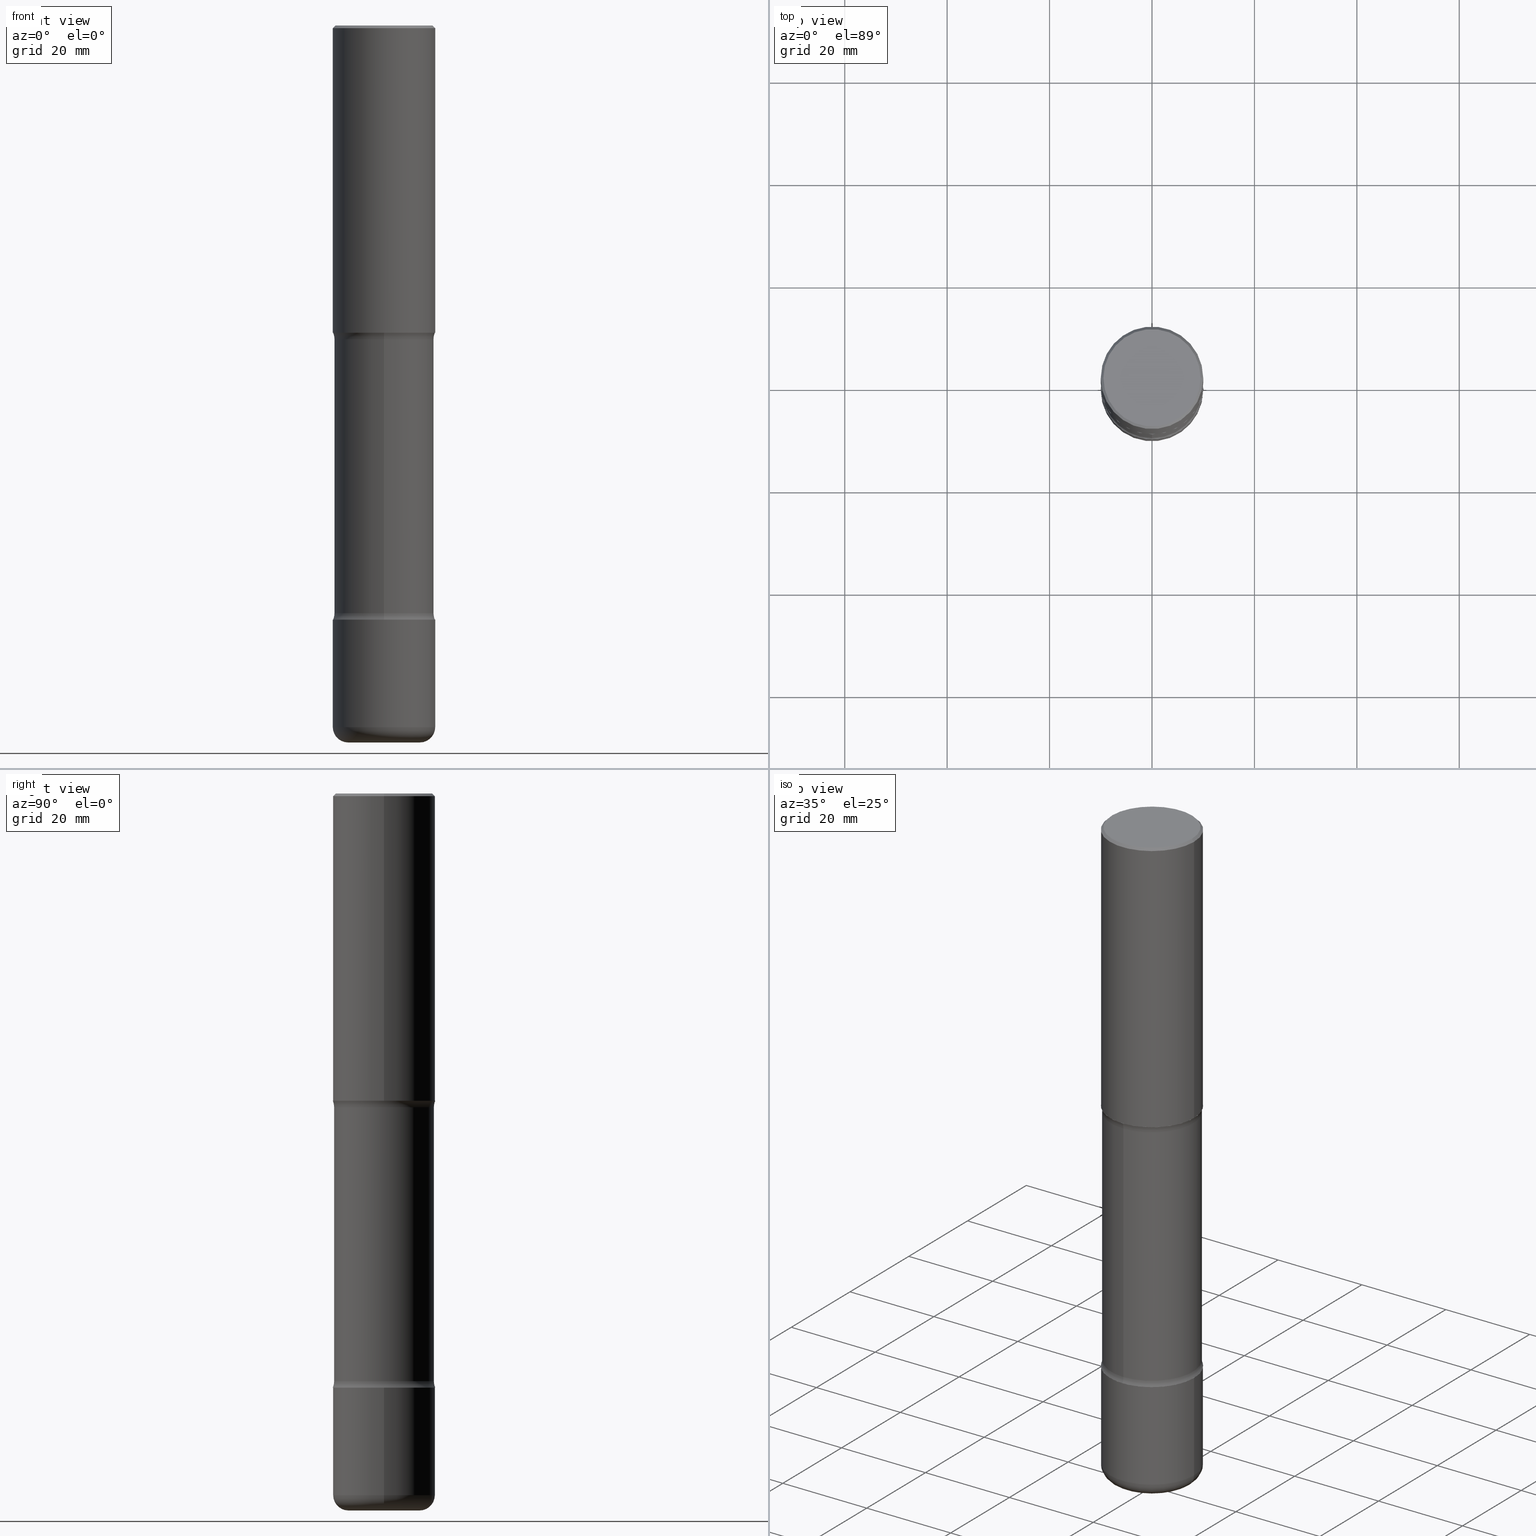
[diagram: canonical four-view strip — front | top / right | iso, engineering-drawing reading convention]
A machine part, canonical four-view strip (front | top / right | iso — engineering-drawing reading convention). The complete STEP part file that produces these views, byte-faithful:
ISO-10303-21;
HEADER;
FILE_DESCRIPTION (( 'STEP AP203' ),
    '1' );
FILE_NAME ('46839.STEP',
    '2024-03-02T05:49:47',
    ( '' ),
    ( '' ),
    'SwSTEP 2.0',
    'SolidWorks 2023',
    '' );
FILE_SCHEMA (( 'CONFIG_CONTROL_DESIGN' ));
ENDSEC;

DATA;
#1 = AXIS2_PLACEMENT_3D ( 'NONE', #375, #271, #474 ) ;
#2 = DIRECTION ( 'NONE',  ( -2.445468806185136597E-29, 3.491481338843145583E-15, 1.000000000000000000 ) ) ;
#3 = AXIS2_PLACEMENT_3D ( 'NONE', #250, #351, #558 ) ;
#4 = AXIS2_PLACEMENT_3D ( 'NONE', #115, #507, #152 ) ;
#5 = ORIENTED_EDGE ( 'NONE', *, *, #280, .F. ) ;
#6 = CYLINDRICAL_SURFACE ( 'NONE', #284, 0.3937000000000004940 ) ;
#7 = DIRECTION ( 'NONE',  ( 6.982962677686265133E-15, 1.000000000000000000, -2.849385130288669478E-15 ) ) ;
#8 = CARTESIAN_POINT ( 'NONE',  ( 0.000000000000000000, 0.000000000000000000, 0.000000000000000000 ) ) ;
#9 = DIRECTION ( 'NONE',  ( -2.445468806185136597E-29, 3.491481338843145583E-15, 1.000000000000000000 ) ) ;
#10 = VECTOR ( 'NONE', #499, 39.37007874015748143 ) ;
#11 = ADVANCED_FACE ( 'NONE', ( #300 ), #355, .F. ) ;
#12 = FACE_OUTER_BOUND ( 'NONE', #429, .T. ) ;
#13 = CARTESIAN_POINT ( 'NONE',  ( -2.700978061722601160E-15, -0.3937000000000093203, -2.362199999999998745 ) ) ;
#14 = VECTOR ( 'NONE', #131, 39.37007874015748143 ) ;
#15 = ADVANCED_FACE ( 'NONE', ( #84 ), #87, .T. ) ;
#16 = PERSON_AND_ORGANIZATION ( #181, #86 ) ;
#17 = CARTESIAN_POINT ( 'NONE',  ( -0.2756000000000005112, -1.666034360515578642E-14, -5.511800000000000033 ) ) ;
#18 = CARTESIAN_POINT ( 'NONE',  ( -2.087702828670439639E-46, 2.980686340760894400E-32, 8.537024980200822558E-18 ) ) ;
#19 = ADVANCED_FACE ( 'NONE', ( #399 ), #501, .F. ) ;
#20 = DIRECTION ( 'NONE',  ( 6.982962677686265133E-15, 1.000000000000000000, -3.339103073195795043E-15 ) ) ;
#21 = APPROVAL_DATE_TIME ( #151, #330 ) ;
#22 = VECTOR ( 'NONE', #398, 39.37007874015748143 ) ;
#23 = AXIS2_PLACEMENT_3D ( 'NONE', #50, #111, #513 ) ;
#24 = EDGE_CURVE ( 'NONE', #26, #469, #70, .T. ) ;
#25 = EDGE_LOOP ( 'NONE', ( #124, #123 ) ) ;
#26 = VERTEX_POINT ( 'NONE', #142 ) ;
#27 = ADVANCED_FACE ( 'NONE', ( #90 ), #313, .F. ) ;
#28 = ORIENTED_EDGE ( 'NONE', *, *, #502, .F. ) ;
#29 = ORIENTED_EDGE ( 'NONE', *, *, #239, .T. ) ;
#30 = DATE_AND_TIME ( #286, #102 ) ;
#31 = ADVANCED_FACE ( 'NONE', ( #369 ), #41, .T. ) ;
#32 = TOROIDAL_SURFACE ( 'NONE', #356, 0.2756000000000005112, 0.1180999999999995248 ) ;
#33 = AXIS2_PLACEMENT_3D ( 'NONE', #516, #519, #381 ) ;
#34 = CARTESIAN_POINT ( 'NONE',  ( 5.776686413970530874E-29, -8.247577218615279626E-15, -2.362200000000000077 ) ) ;
#35 = CARTESIAN_POINT ( 'NONE',  ( 1.116821149096690103E-28, -1.594524612636276117E-14, -4.566900000000000404 ) ) ;
#36 = DIRECTION ( 'NONE',  ( 1.000000000000000000, -6.860497997771530774E-15, 4.842664975176989819E-29 ) ) ;
#37 = ORIENTED_EDGE ( 'NONE', *, *, #61, .T. ) ;
#38 = PERSON_AND_ORGANIZATION ( #181, #86 ) ;
#39 = DIRECTION ( 'NONE',  ( -2.445468806185136597E-29, 3.491481338843145583E-15, 1.000000000000000000 ) ) ;
#40 = ORIENTED_EDGE ( 'NONE', *, *, #527, .T. ) ;
#41 = CONICAL_SURFACE ( 'NONE', #364, 0.3937000000000000499, 0.7853981633974473908 ) ;
#42 = CARTESIAN_POINT ( 'NONE',  ( 0.3937000000000000499, -2.770807688499515734E-15, -0.02000000000000008715 ) ) ;
#43 = VECTOR ( 'NONE', #535, 39.37007874015748143 ) ;
#44 = LOCAL_TIME ( 0, 49, 47.00000000000000000, #336 ) ;
#45 = CARTESIAN_POINT ( 'NONE',  ( 1.319012509992077371E-28, -1.883200289731827938E-14, -5.393700000000000827 ) ) ;
#46 = CC_DESIGN_DATE_AND_TIME_ASSIGNMENT ( #195, #539, ( #112 ) ) ;
#47 = EDGE_CURVE ( 'NONE', #338, #162, #282, .T. ) ;
#48 = ORIENTED_EDGE ( 'NONE', *, *, #298, .T. ) ;
#49 = DIRECTION ( 'NONE',  ( 2.551873980375737716E-29, -3.339103073195795043E-15, -1.000000000000000000 ) ) ;
#50 = CARTESIAN_POINT ( 'NONE',  ( 4.890937612370294178E-31, -6.982962677686321191E-17, -0.02000000000000008715 ) ) ;
#51 = EDGE_CURVE ( 'NONE', #551, #335, #510, .T. ) ;
#52 = VERTEX_POINT ( 'NONE', #403 ) ;
#53 = DIRECTION ( 'NONE',  ( 2.551873980375737716E-29, -3.339103073195795043E-15, -1.000000000000000000 ) ) ;
#54 = CC_DESIGN_PERSON_AND_ORGANIZATION_ASSIGNMENT ( #188, #504, ( #139 ) ) ;
#55 = FACE_OUTER_BOUND ( 'NONE', #434, .T. ) ;
#56 = CIRCLE ( 'NONE', #172, 0.1250000000000001110 ) ;
#57 = ORIENTED_EDGE ( 'NONE', *, *, #168, .F. ) ;
#58 = CARTESIAN_POINT ( 'NONE',  ( 1.319012509992077371E-28, -1.883200289731827938E-14, -5.393700000000000827 ) ) ;
#59 = EDGE_CURVE ( 'NONE', #517, #549, #120, .T. ) ;
#60 = DIRECTION ( 'NONE',  ( 1.000000000000000000, -6.982962677686265922E-15, 0.000000000000000000 ) ) ;
#61 = EDGE_CURVE ( 'NONE', #291, #169, #228, .T. ) ;
#62 = DATE_AND_TIME ( #113, #368 ) ;
#63 = CIRCLE ( 'NONE', #252, 0.3937000000000007160 ) ;
#64 = AXIS2_PLACEMENT_3D ( 'NONE', #503, #461, #20 ) ;
#65 = AXIS2_PLACEMENT_3D ( 'NONE', #45, #217, #167 ) ;
#66 = CARTESIAN_POINT ( 'NONE',  ( 0.3937000000000002164, -1.099676962482036442E-14, -2.362200000000000077 ) ) ;
#67 = PERSON_AND_ORGANIZATION ( #181, #86 ) ;
#68 = PLANE ( 'NONE',  #295 ) ;
#69 = ORIENTED_EDGE ( 'NONE', *, *, #327, .F. ) ;
#70 = CIRCLE ( 'NONE', #466, 0.3736999999999999766 ) ;
#71 = CIRCLE ( 'NONE', #214, 0.3937000000000004385 ) ;
#72 =( NAMED_UNIT ( * ) PLANE_ANGLE_UNIT ( ) SI_UNIT ( $, .RADIAN. ) );
#73 = VERTEX_POINT ( 'NONE', #263 ) ;
#74 = ORIENTED_EDGE ( 'NONE', *, *, #24, .T. ) ;
#75 = ORIENTED_EDGE ( 'NONE', *, *, #156, .T. ) ;
#76 = VECTOR ( 'NONE', #407, 39.37007874015748143 ) ;
#77 = ORIENTED_EDGE ( 'NONE', *, *, #314, .F. ) ;
#78 = LINE ( 'NONE', #88, #43 ) ;
#79 = ORIENTED_EDGE ( 'NONE', *, *, #327, .T. ) ;
#80 = CARTESIAN_POINT ( 'NONE',  ( 1.357947721502393649E-28, -1.910036462022546845E-14, -5.511800000000000033 ) ) ;
#81 = ORIENTED_EDGE ( 'NONE', *, *, #281, .T. ) ;
#82 = APPROVAL_DATE_TIME ( #431, #545 ) ;
#83 = LINE ( 'NONE', #307, #404 ) ;
#84 = FACE_OUTER_BOUND ( 'NONE', #379, .T. ) ;
#85 = CYLINDRICAL_SURFACE ( 'NONE', #157, 0.3835000000000001741 ) ;
#86 = ORGANIZATION ( 'UNSPECIFIED', 'UNSPECIFIED', '' ) ;
#87 = CYLINDRICAL_SURFACE ( 'NONE', #316, 0.3835000000000001741 ) ;
#88 = CARTESIAN_POINT ( 'NONE',  ( -0.3937000000000000499, 2.679362779428219918E-15, -0.02000000000000008715 ) ) ;
#89 = ORIENTED_EDGE ( 'NONE', *, *, #205, .F. ) ;
#90 = FACE_OUTER_BOUND ( 'NONE', #198, .T. ) ;
#91 = ADVANCED_FACE ( 'NONE', ( #185 ), #99, .F. ) ;
#92 = UNCERTAINTY_MEASURE_WITH_UNIT (LENGTH_MEASURE( 1.000000000000000082E-05 ), #323, 'distance_accuracy_value', 'NONE');
#93 = DIRECTION ( 'NONE',  ( 7.105427357601001859E-15, 1.000000000000000000, -3.491481338843145583E-15 ) ) ;
#94 = ADVANCED_BREP_SHAPE_REPRESENTATION ( '46839', ( #287, #477, #95, #4 ), #285 ) ;
#95 = MANIFOLD_SOLID_BREP ( 'Body-Move/Copy2[4]', #237 ) ;
#96 = CARTESIAN_POINT ( 'NONE',  ( 1.104200435858908498E-28, -1.578010528209585513E-14, -4.517443352317408234 ) ) ;
#97 = AXIS2_PLACEMENT_3D ( 'NONE', #261, #249, #443 ) ;
#98 = EDGE_LOOP ( 'NONE', ( #196, #199, #401, #57 ) ) ;
#99 = TOROIDAL_SURFACE ( 'NONE', #505, 0.5085000000000003961, 0.1250000000000001110 ) ;
#100 = DIRECTION ( 'NONE',  ( 2.438088387897960049E-29, -3.491481338843145188E-15, -1.000000000000000000 ) ) ;
#101 = PERSON_AND_ORGANIZATION_ROLE ( 'classification_officer' ) ;
#102 = LOCAL_TIME ( 0, 49, 47.00000000000000000, #550 ) ;
#103 = ADVANCED_FACE ( 'NONE', ( #12 ), #538, .F. ) ;
#104 = APPROVAL_STATUS ( 'not_yet_approved' ) ;
#105 = CARTESIAN_POINT ( 'NONE',  ( 0.3937000000000003830, -2.158119530352336260E-14, -5.393700000000000827 ) ) ;
#106 =( LENGTH_UNIT ( ) NAMED_UNIT ( * ) SI_UNIT ( $, .METRE. ) );
#107 = DIRECTION ( 'NONE',  ( 1.000000000000000000, -6.982962677686270655E-15, 0.000000000000000000 ) ) ;
#108 = ORIENTED_EDGE ( 'NONE', *, *, #59, .T. ) ;
#109 = CIRCLE ( 'NONE', #324, 0.3835000000000000075 ) ;
#110 = ADVANCED_FACE ( 'NONE', ( #481 ), #472, .T. ) ;
#111 = DIRECTION ( 'NONE',  ( -2.445468806185136597E-29, 3.491481338843145583E-15, 1.000000000000000000 ) ) ;
#112 = SECURITY_CLASSIFICATION ( '', '', #234 ) ;
#113 = CALENDAR_DATE ( 2024, 2, 3 ) ;
#114 = ADVANCED_FACE ( 'NONE', ( #354 ), #6, .T. ) ;
#115 = CARTESIAN_POINT ( 'NONE',  ( 0.000000000000000000, 0.000000000000000000, 0.000000000000000000 ) ) ;
#116 = DIRECTION ( 'NONE',  ( 1.000000000000000000, -6.982962677686266711E-15, 4.876212485538975679E-29 ) ) ;
#117 = APPLICATION_PROTOCOL_DEFINITION ( 'international standard', 'config_control_design', 1994, #464 ) ;
#118 = EDGE_CURVE ( 'NONE', #469, #26, #415, .T. ) ;
#119 = ORIENTED_EDGE ( 'NONE', *, *, #409, .F. ) ;
#120 = CIRCLE ( 'NONE', #182, 0.3835000000000002851 ) ;
#121 = CIRCLE ( 'NONE', #65, 0.3937000000000006605 ) ;
#122 = ORIENTED_EDGE ( 'NONE', *, *, #176, .F. ) ;
#123 = ORIENTED_EDGE ( 'NONE', *, *, #197, .F. ) ;
#124 = ORIENTED_EDGE ( 'NONE', *, *, #161, .F. ) ;
#125 = EDGE_LOOP ( 'NONE', ( #543, #278, #189, #494 ) ) ;
#126 = EDGE_LOOP ( 'NONE', ( #475, #520, #251, #28 ) ) ;
#127 = ORIENTED_EDGE ( 'NONE', *, *, #321, .F. ) ;
#128 = FACE_OUTER_BOUND ( 'NONE', #25, .T. ) ;
#129 = CIRCLE ( 'NONE', #230, 0.1249999999999999584 ) ;
#130 = CC_DESIGN_SECURITY_CLASSIFICATION ( #112, ( #139 ) ) ;
#131 = DIRECTION ( 'NONE',  ( -2.445468806185136877E-29, 3.491481338843145188E-15, 1.000000000000000000 ) ) ;
#132 = EDGE_LOOP ( 'NONE', ( #208, #127 ) ) ;
#133 = EDGE_LOOP ( 'NONE', ( #220, #438, #37, #69 ) ) ;
#134 = DIRECTION ( 'NONE',  ( 6.982962677686265133E-15, 1.000000000000000000, -3.339103073195795043E-15 ) ) ;
#135 = DIRECTION ( 'NONE',  ( 6.982962677686265133E-15, 1.000000000000000000, -2.849385130288669478E-15 ) ) ;
#136 = DIRECTION ( 'NONE',  ( -1.000000000000000000, 6.982962677686265922E-15, -4.883557194083112340E-29 ) ) ;
#137 = CIRCLE ( 'NONE', #275, 0.3937000000000004385 ) ;
#138 = CARTESIAN_POINT ( 'NONE',  ( -2.087702828670439639E-46, 2.980686340760894400E-32, 8.537024980200822558E-18 ) ) ;
#139 = PRODUCT_DEFINITION_FORMATION_WITH_SPECIFIED_SOURCE ( 'ANY', '', #448, .NOT_KNOWN. ) ;
#140 = DIRECTION ( 'NONE',  ( 2.445468806185136597E-29, -3.491481338843145583E-15, -1.000000000000000000 ) ) ;
#141 = CARTESIAN_POINT ( 'NONE',  ( -2.700978061722541995E-15, -0.3937000000000162037, -4.566899999999999515 ) ) ;
#142 = CARTESIAN_POINT ( 'NONE',  ( -0.3736999999999999766, 2.644447966039789058E-15, 8.537024980182450727E-18 ) ) ;
#143 = CARTESIAN_POINT ( 'NONE',  ( -0.3937000000000000499, 2.679362779428219918E-15, -0.02000000000000008715 ) ) ;
#144 = CARTESIAN_POINT ( 'NONE',  ( 1.116821149096690103E-28, -1.594524612636276117E-14, -4.566900000000000404 ) ) ;
#145 = EDGE_CURVE ( 'NONE', #549, #52, #83, .T. ) ;
#146 = DIRECTION ( 'NONE',  ( 2.551873980375737716E-29, -3.339103073195795043E-15, -1.000000000000000000 ) ) ;
#147 = CALENDAR_DATE ( 2024, 2, 3 ) ;
#148 = AXIS2_PLACEMENT_3D ( 'NONE', #34, #384, #342 ) ;
#149 = CARTESIAN_POINT ( 'NONE',  ( -0.3937000000000002720, -1.361296672008554112E-15, -2.362200000000000077 ) ) ;
#150 = LENGTH_MEASURE_WITH_UNIT ( LENGTH_MEASURE( 0.02539999999999999897 ), #106 );
#151 = DATE_AND_TIME ( #147, #325 ) ;
#152 = DIRECTION ( 'NONE',  ( 1.000000000000000000, 0.000000000000000000, 0.000000000000000000 ) ) ;
#153 = FACE_OUTER_BOUND ( 'NONE', #98, .T. ) ;
#154 = ADVANCED_FACE ( 'NONE', ( #521 ), #85, .T. ) ;
#155 = CALENDAR_DATE ( 2024, 2, 3 ) ;
#156 = EDGE_CURVE ( 'NONE', #340, #52, #522, .T. ) ;
#157 = AXIS2_PLACEMENT_3D ( 'NONE', #80, #357, #7 ) ;
#158 = EDGE_LOOP ( 'NONE', ( #554, #5, #397, #75 ) ) ;
#159 = CC_DESIGN_PERSON_AND_ORGANIZATION_ASSIGNMENT ( #457, #101, ( #112 ) ) ;
#160 = DATE_TIME_ROLE ( 'creation_date' ) ;
#161 = EDGE_CURVE ( 'NONE', #383, #432, #304, .T. ) ;
#162 = VERTEX_POINT ( 'NONE', #444 ) ;
#163 = ORIENTED_EDGE ( 'NONE', *, *, #409, .T. ) ;
#164 = AXIS2_PLACEMENT_3D ( 'NONE', #302, #49, #134 ) ;
#165 = APPROVAL_PERSON_ORGANIZATION ( #331, #358, #506 ) ;
#166 = ORIENTED_EDGE ( 'NONE', *, *, #232, .F. ) ;
#167 = DIRECTION ( 'NONE',  ( 1.000000000000000000, -6.982962677686266711E-15, 0.000000000000000000 ) ) ;
#168 = EDGE_CURVE ( 'NONE', #517, #293, #446, .T. ) ;
#169 = VERTEX_POINT ( 'NONE', #254 ) ;
#170 = CARTESIAN_POINT ( 'NONE',  ( 0.3937000000000000499, -2.770807688499515734E-15, -0.02000000000000008715 ) ) ;
#171 = FACE_OUTER_BOUND ( 'NONE', #514, .T. ) ;
#172 = AXIS2_PLACEMENT_3D ( 'NONE', #202, #36, #556 ) ;
#173 = CC_DESIGN_APPROVAL ( #330, ( #112 ) ) ;
#174 = DIRECTION ( 'NONE',  ( 2.445468806185136597E-29, -3.491481338843145583E-15, -1.000000000000000000 ) ) ;
#175 = ORIENTED_EDGE ( 'NONE', *, *, #527, .F. ) ;
#176 = EDGE_CURVE ( 'NONE', #293, #343, #63, .T. ) ;
#177 = CARTESIAN_POINT ( 'NONE',  ( 5.776686413970530874E-29, -8.247577218615279626E-15, -2.362200000000000077 ) ) ;
#178 = DIRECTION ( 'NONE',  ( 1.000000000000000000, -6.982962677686267499E-15, 0.000000000000000000 ) ) ;
#179 = EDGE_CURVE ( 'NONE', #383, #551, #246, .T. ) ;
#180 = CARTESIAN_POINT ( 'NONE',  ( 1.319012509992077371E-28, -1.883200289731827938E-14, -5.393700000000000827 ) ) ;
#181 = PERSON ( 'UNSPECIFIED', 'UNSPECIFIED', 'UNSPECIFIED', ('UNSPECIFIED'), ('UNSPECIFIED'), ('UNSPECIFIED') ) ;
#182 = AXIS2_PLACEMENT_3D ( 'NONE', #540, #226, #360 ) ;
#183 = DIRECTION ( 'NONE',  ( -2.445468806185136597E-29, 3.491481338843145583E-15, 1.000000000000000000 ) ) ;
#184 = APPROVAL_PERSON_ORGANIZATION ( #67, #330, #363 ) ;
#185 = FACE_OUTER_BOUND ( 'NONE', #203, .T. ) ;
#186 = DIRECTION ( 'NONE',  ( 1.000000000000000000, -6.860497997771530774E-15, 4.842664975176989819E-29 ) ) ;
#187 = DIRECTION ( 'NONE',  ( 6.982962677686265922E-15, 1.000000000000000000, -2.849385130288670661E-15 ) ) ;
#188 = PERSON_AND_ORGANIZATION ( #181, #86 ) ;
#189 = ORIENTED_EDGE ( 'NONE', *, *, #298, .F. ) ;
#190 = AXIS2_PLACEMENT_3D ( 'NONE', #209, #136, #389 ) ;
#191 = DIRECTION ( 'NONE',  ( 6.982962677686265922E-15, 1.000000000000000000, -3.339103073195795043E-15 ) ) ;
#192 = AXIS2_PLACEMENT_3D ( 'NONE', #542, #186, #359 ) ;
#193 = CARTESIAN_POINT ( 'NONE',  ( 1.116821149096690103E-28, -1.594524612636276117E-14, -4.566900000000000404 ) ) ;
#194 = CARTESIAN_POINT ( 'NONE',  ( 3.550836521603578467E-15, 0.5084999999999844089, -4.517443352317410010 ) ) ;
#195 = DATE_AND_TIME ( #155, #487 ) ;
#196 = ORIENTED_EDGE ( 'NONE', *, *, #419, .F. ) ;
#197 = EDGE_CURVE ( 'NONE', #432, #383, #334, .T. ) ;
#198 = EDGE_LOOP ( 'NONE', ( #122, #311 ) ) ;
#199 = ORIENTED_EDGE ( 'NONE', *, *, #422, .T. ) ;
#200 = FACE_OUTER_BOUND ( 'NONE', #518, .T. ) ;
#201 = CIRCLE ( 'NONE', #317, 0.3937000000000006605 ) ;
#202 = CARTESIAN_POINT ( 'NONE',  ( -3.488563231866769362E-15, -0.5085000000000091669, -2.411656647682591359 ) ) ;
#203 = EDGE_LOOP ( 'NONE', ( #347, #424, #560, #470 ) ) ;
#204 = DIRECTION ( 'NONE',  ( -2.445468806185136597E-29, 3.491481338843145583E-15, 1.000000000000000000 ) ) ;
#205 = EDGE_CURVE ( 'NONE', #26, #335, #78, .T. ) ;
#206 = DIRECTION ( 'NONE',  ( 2.551873980375737716E-29, -3.339103073195795043E-15, -1.000000000000000000 ) ) ;
#207 = ORIENTED_EDGE ( 'NONE', *, *, #265, .T. ) ;
#208 = ORIENTED_EDGE ( 'NONE', *, *, #476, .F. ) ;
#209 = CARTESIAN_POINT ( 'NONE',  ( 3.550836521603526008E-15, 0.5084999999999916254, -2.411656647682594468 ) ) ;
#210 = ORIENTED_EDGE ( 'NONE', *, *, #281, .F. ) ;
#211 = CARTESIAN_POINT ( 'NONE',  ( 1.347893496593123646E-28, -1.924434684343564878E-14, -5.511800000000000033 ) ) ;
#212 = ORIENTED_EDGE ( 'NONE', *, *, #419, .T. ) ;
#213 = AXIS2_PLACEMENT_3D ( 'NONE', #412, #500, #191 ) ;
#214 = AXIS2_PLACEMENT_3D ( 'NONE', #346, #526, #437 ) ;
#215 = AXIS2_PLACEMENT_3D ( 'NONE', #8, #260, #299 ) ;
#216 = CARTESIAN_POINT ( 'NONE',  ( 0.3937000000000001054, -2.749192406205084005E-15, 1.919750796630860452E-29 ) ) ;
#217 = DIRECTION ( 'NONE',  ( -2.445468806185136597E-29, 3.491481338843145583E-15, 1.000000000000000000 ) ) ;
#218 = DIRECTION ( 'NONE',  ( 2.551873980375737716E-29, -3.339103073195795043E-15, -1.000000000000000000 ) ) ;
#219 = DIRECTION ( 'NONE',  ( 1.000000000000000000, -6.982962677686266711E-15, 0.000000000000000000 ) ) ;
#220 = ORIENTED_EDGE ( 'NONE', *, *, #309, .F. ) ;
#221 = CARTESIAN_POINT ( 'NONE',  ( 1.104200435858908498E-28, -1.578010528209585513E-14, -4.517443352317408234 ) ) ;
#222 = CIRCLE ( 'NONE', #547, 0.3835000000000002851 ) ;
#223 = CARTESIAN_POINT ( 'NONE',  ( 1.357947721502393649E-28, -1.910036462022546845E-14, -5.511800000000000033 ) ) ;
#224 = LINE ( 'NONE', #411, #10 ) ;
#225 = DIRECTION ( 'NONE',  ( -2.445468806185136597E-29, 3.491481338843145583E-15, 1.000000000000000000 ) ) ;
#226 = DIRECTION ( 'NONE',  ( 2.551873980375737716E-29, -3.339103073195795043E-15, -1.000000000000000000 ) ) ;
#227 = DIRECTION ( 'NONE',  ( -1.000000000000000000, 6.982962677686265922E-15, -4.883557194083112340E-29 ) ) ;
#228 = LINE ( 'NONE', #308, #393 ) ;
#229 = PERSON_AND_ORGANIZATION ( #181, #86 ) ;
#230 = AXIS2_PLACEMENT_3D ( 'NONE', #194, #227, #272 ) ;
#231 = COORDINATED_UNIVERSAL_TIME_OFFSET ( 5, 0, .BEHIND. ) ;
#232 = EDGE_CURVE ( 'NONE', #291, #162, #201, .T. ) ;
#233 = FACE_OUTER_BOUND ( 'NONE', #240, .T. ) ;
#234 = SECURITY_CLASSIFICATION_LEVEL ( 'unclassified' ) ;
#235 = ORIENTED_EDGE ( 'NONE', *, *, #280, .T. ) ;
#236 = DIMENSIONAL_EXPONENTS ( 1.000000000000000000, 0.000000000000000000, 0.000000000000000000, 0.000000000000000000, 0.000000000000000000, 0.000000000000000000, 0.000000000000000000 ) ;
#237 = CLOSED_SHELL ( 'NONE', ( #154, #11, #382, #91, #27, #490, #259, #15 ) ) ;
#238 = AXIS2_PLACEMENT_3D ( 'NONE', #529, #532, #478 ) ;
#239 = EDGE_CURVE ( 'NONE', #469, #551, #292, .T. ) ;
#240 = EDGE_LOOP ( 'NONE', ( #283, #329, #166, #210 ) ) ;
#241 = DIRECTION ( 'NONE',  ( -2.445468806185136597E-29, 3.491481338843145583E-15, 1.000000000000000000 ) ) ;
#242 = FACE_OUTER_BOUND ( 'NONE', #133, .T. ) ;
#243 = CIRCLE ( 'NONE', #541, 0.1180999999999995526 ) ;
#244 = ADVANCED_FACE ( 'NONE', ( #171 ), #378, .T. ) ;
#245 = ORIENTED_EDGE ( 'NONE', *, *, #179, .F. ) ;
#246 = LINE ( 'NONE', #216, #14 ) ;
#247 = DIRECTION ( 'NONE',  ( 6.982962677686265922E-15, 1.000000000000000000, -3.469453890861389657E-15 ) ) ;
#248 = ORIENTED_EDGE ( 'NONE', *, *, #458, .F. ) ;
#249 = DIRECTION ( 'NONE',  ( 2.551873980375737716E-29, -3.339103073195795043E-15, -1.000000000000000000 ) ) ;
#250 = CARTESIAN_POINT ( 'NONE',  ( 5.776686413970530874E-29, -8.247577218615279626E-15, -2.362200000000000077 ) ) ;
#251 = ORIENTED_EDGE ( 'NONE', *, *, #179, .T. ) ;
#252 = AXIS2_PLACEMENT_3D ( 'NONE', #439, #450, #400 ) ;
#253 = DIRECTION ( 'NONE',  ( 1.000000000000000000, -6.982962677686266711E-15, 4.883557194083112340E-29 ) ) ;
#254 = CARTESIAN_POINT ( 'NONE',  ( 0.3937000000000004385, -1.869443853256785070E-14, -4.566900000000000404 ) ) ;
#255 = LINE ( 'NONE', #491, #276 ) ;
#256 = ORIENTED_EDGE ( 'NONE', *, *, #118, .T. ) ;
#257 = DIRECTION ( 'NONE',  ( -1.000000000000000000, 6.982962677686265922E-15, 0.000000000000000000 ) ) ;
#258 = CARTESIAN_POINT ( 'NONE',  ( 4.890937612370294178E-31, -6.982962677686321191E-17, -0.02000000000000008715 ) ) ;
#259 = ADVANCED_FACE ( 'NONE', ( #350 ), #348, .F. ) ;
#260 = DIRECTION ( 'NONE',  ( -2.445468806185136597E-29, 3.491481338843145583E-15, 1.000000000000000000 ) ) ;
#261 = CARTESIAN_POINT ( 'NONE',  ( 1.104726680180063437E-28, -1.577256916389725369E-14, -4.517443352317409122 ) ) ;
#262 = CARTESIAN_POINT ( 'NONE',  ( 0.2756000000000005112, -2.075650741128861749E-14, -5.393700000000000827 ) ) ;
#263 = CARTESIAN_POINT ( 'NONE',  ( 2.749192406205196813E-15, 0.3936999999999843958, -4.566900000000001292 ) ) ;
#264 = ORIENTED_EDGE ( 'NONE', *, *, #425, .T. ) ;
#265 = EDGE_CURVE ( 'NONE', #394, #73, #71, .T. ) ;
#266 = CARTESIAN_POINT ( 'NONE',  ( -0.3937000000000001054, 2.797406750687515181E-15, -1.936584745033357016E-29 ) ) ;
#267 = TOROIDAL_SURFACE ( 'NONE', #534, 0.2756000000000005112, 0.1180999999999995248 ) ;
#268 = DIRECTION ( 'NONE',  ( 2.551873980375737716E-29, -3.339103073195795043E-15, -1.000000000000000000 ) ) ;
#269 = LINE ( 'NONE', #266, #76 ) ;
#270 = CARTESIAN_POINT ( 'NONE',  ( 4.890937612370294178E-31, -6.982962677686321191E-17, -0.02000000000000008715 ) ) ;
#271 = DIRECTION ( 'NONE',  ( 2.438088387897960049E-29, -3.491481338843145188E-15, -1.000000000000000000 ) ) ;
#272 = DIRECTION ( 'NONE',  ( -6.982962677686265133E-15, -1.000000000000000000, 0.000000000000000000 ) ) ;
#273 = PRODUCT_DEFINITION ( 'UNKNOWN', '', #139, #319 ) ;
#274 = DIRECTION ( 'NONE',  ( 6.982962677686265922E-15, 1.000000000000000000, -2.775563112689113540E-15 ) ) ;
#275 = AXIS2_PLACEMENT_3D ( 'NONE', #193, #225, #107 ) ;
#276 = VECTOR ( 'NONE', #218, 39.37007874015748143 ) ;
#277 = COORDINATED_UNIVERSAL_TIME_OFFSET ( 5, 0, .BEHIND. ) ;
#278 = ORIENTED_EDGE ( 'NONE', *, *, #309, .T. ) ;
#279 = PERSON_AND_ORGANIZATION ( #181, #86 ) ;
#280 = EDGE_CURVE ( 'NONE', #73, #394, #459, .T. ) ;
#281 = EDGE_CURVE ( 'NONE', #557, #291, #243, .T. ) ;
#282 = CIRCLE ( 'NONE', #433, 0.1180999999999995526 ) ;
#283 = ORIENTED_EDGE ( 'NONE', *, *, #476, .T. ) ;
#284 = AXIS2_PLACEMENT_3D ( 'NONE', #402, #9, #301 ) ;
#285 =( GEOMETRIC_REPRESENTATION_CONTEXT ( 3 ) GLOBAL_UNCERTAINTY_ASSIGNED_CONTEXT ( ( #92 ) ) GLOBAL_UNIT_ASSIGNED_CONTEXT ( ( #323, #72, #370 ) ) REPRESENTATION_CONTEXT ( 'NONE', 'WORKASPACE' ) );
#286 = CALENDAR_DATE ( 2024, 2, 3 ) ;
#287 = MANIFOLD_SOLID_BREP ( 'Body-Move/Copy2[1]', #414 ) ;
#288 = ORIENTED_EDGE ( 'NONE', *, *, #239, .F. ) ;
#289 = ORIENTED_EDGE ( 'NONE', *, *, #145, .F. ) ;
#290 = CC_DESIGN_DATE_AND_TIME_ASSIGNMENT ( #30, #160, ( #273 ) ) ;
#291 = VERTEX_POINT ( 'NONE', #105 ) ;
#292 = LINE ( 'NONE', #42, #22 ) ;
#293 = VERTEX_POINT ( 'NONE', #537 ) ;
#294 = AXIS2_PLACEMENT_3D ( 'NONE', #221, #53, #488 ) ;
#295 = AXIS2_PLACEMENT_3D ( 'NONE', #353, #530, #482 ) ;
#296 = DIRECTION ( 'NONE',  ( 1.000000000000000000, -6.982962677686266711E-15, 4.876212485538975679E-29 ) ) ;
#297 = ORIENTED_EDGE ( 'NONE', *, *, #265, .F. ) ;
#298 = EDGE_CURVE ( 'NONE', #169, #442, #454, .T. ) ;
#299 = DIRECTION ( 'NONE',  ( 1.000000000000000000, -6.982962677686266711E-15, 4.876176775795935793E-29 ) ) ;
#300 = FACE_OUTER_BOUND ( 'NONE', #376, .T. ) ;
#301 = DIRECTION ( 'NONE',  ( 1.000000000000000000, -6.982962677686266711E-15, 4.876176775795935793E-29 ) ) ;
#302 = CARTESIAN_POINT ( 'NONE',  ( 1.104726680180063437E-28, -1.577256916389725369E-14, -4.517443352317409122 ) ) ;
#303 = CARTESIAN_POINT ( 'NONE',  ( 0.000000000000000000, 0.000000000000000000, 0.000000000000000000 ) ) ;
#304 = CIRCLE ( 'NONE', #3, 0.3937000000000002164 ) ;
#305 = TOROIDAL_SURFACE ( 'NONE', #64, 0.5085000000000003961, 0.1250000000000001110 ) ;
#306 = CARTESIAN_POINT ( 'NONE',  ( -2.665989521933964538E-15, -0.3835000000000090559, -2.411656647682591803 ) ) ;
#307 = CARTESIAN_POINT ( 'NONE',  ( -2.631000982145247058E-15, -0.3835000000000192699, -5.511799999999999145 ) ) ;
#308 = CARTESIAN_POINT ( 'NONE',  ( 0.3937000000000004940, -2.749192406205086766E-15, 1.919750796630862414E-29 ) ) ;
#309 = EDGE_CURVE ( 'NONE', #162, #442, #224, .T. ) ;
#310 = CYLINDRICAL_SURFACE ( 'NONE', #215, 0.3937000000000004940 ) ;
#311 = ORIENTED_EDGE ( 'NONE', *, *, #449, .F. ) ;
#312 = DIRECTION ( 'NONE',  ( -6.982962677686266711E-15, -1.000000000000000000, 3.491481338843145583E-15 ) ) ;
#313 = PLANE ( 'NONE',  #213 ) ;
#314 = EDGE_CURVE ( 'NONE', #73, #340, #129, .T. ) ;
#315 = DIRECTION ( 'NONE',  ( -2.445468806185136597E-29, 3.491481338843145583E-15, 1.000000000000000000 ) ) ;
#316 = AXIS2_PLACEMENT_3D ( 'NONE', #223, #480, #135 ) ;
#317 = AXIS2_PLACEMENT_3D ( 'NONE', #180, #2, #219 ) ;
#318 = DIRECTION ( 'NONE',  ( 6.982962677686265133E-15, 1.000000000000000000, -3.561731412860835763E-15 ) ) ;
#319 = DESIGN_CONTEXT ( 'detailed design', #464, 'design' ) ;
#320 = APPLICATION_PROTOCOL_DEFINITION ( 'international standard', 'config_control_design', 1994, #332 ) ;
#321 = EDGE_CURVE ( 'NONE', #338, #557, #553, .T. ) ;
#322 = SHAPE_DEFINITION_REPRESENTATION ( #546, #94 ) ;
#323 =( CONVERSION_BASED_UNIT ( 'INCH', #150 ) LENGTH_UNIT ( ) NAMED_UNIT ( #236 ) );
#324 = AXIS2_PLACEMENT_3D ( 'NONE', #96, #452, #187 ) ;
#325 = LOCAL_TIME ( 0, 49, 47.00000000000000000, #231 ) ;
#326 = APPROVAL_DATE_TIME ( #62, #358 ) ;
#327 = EDGE_CURVE ( 'NONE', #442, #169, #137, .T. ) ;
#328 = PERSON_AND_ORGANIZATION_ROLE ( 'design_owner' ) ;
#329 = ORIENTED_EDGE ( 'NONE', *, *, #47, .T. ) ;
#330 = APPROVAL ( #413, 'UNSPECIFIED' ) ;
#331 = PERSON_AND_ORGANIZATION ( #181, #86 ) ;
#332 = APPLICATION_CONTEXT ( 'configuration controlled 3d designs of mechanical parts and assemblies' ) ;
#333 = ORIENTED_EDGE ( 'NONE', *, *, #205, .T. ) ;
#334 = CIRCLE ( 'NONE', #533, 0.3937000000000002164 ) ;
#335 = VERTEX_POINT ( 'NONE', #143 ) ;
#336 = COORDINATED_UNIVERSAL_TIME_OFFSET ( 5, 0, .BEHIND. ) ;
#337 = CC_DESIGN_PERSON_AND_ORGANIZATION_ASSIGNMENT ( #38, #388, ( #273 ) ) ;
#338 = VERTEX_POINT ( 'NONE', #17 ) ;
#339 = PLANE ( 'NONE',  #148 ) ;
#340 = VERTEX_POINT ( 'NONE', #544 ) ;
#341 = ORIENTED_EDGE ( 'NONE', *, *, #51, .F. ) ;
#342 = DIRECTION ( 'NONE',  ( 1.000000000000000000, -6.982962677686265922E-15, 4.876176775795935793E-29 ) ) ;
#343 = VERTEX_POINT ( 'NONE', #13 ) ;
#344 = CALENDAR_DATE ( 2024, 2, 3 ) ;
#345 = CARTESIAN_POINT ( 'NONE',  ( 0.2756000000000005112, -2.116885135740598689E-14, -5.511800000000000033 ) ) ;
#346 = CARTESIAN_POINT ( 'NONE',  ( 1.116821149096690103E-28, -1.594524612636276117E-14, -4.566900000000000404 ) ) ;
#347 = ORIENTED_EDGE ( 'NONE', *, *, #422, .F. ) ;
#348 = TOROIDAL_SURFACE ( 'NONE', #164, 0.5085000000000001741, 0.1249999999999999584 ) ;
#349 = CC_DESIGN_APPROVAL ( #545, ( #273 ) ) ;
#350 = FACE_OUTER_BOUND ( 'NONE', #158, .T. ) ;
#351 = DIRECTION ( 'NONE',  ( -2.445468806185136597E-29, 3.491481338843145583E-15, 1.000000000000000000 ) ) ;
#352 = ORIENTED_EDGE ( 'NONE', *, *, #24, .F. ) ;
#353 = CARTESIAN_POINT ( 'NONE',  ( 1.347893496593123646E-28, -1.924434684343564878E-14, -5.511800000000000033 ) ) ;
#354 = FACE_OUTER_BOUND ( 'NONE', #125, .T. ) ;
#355 = TOROIDAL_SURFACE ( 'NONE', #97, 0.5085000000000001741, 0.1249999999999999584 ) ;
#356 = AXIS2_PLACEMENT_3D ( 'NONE', #58, #418, #372 ) ;
#357 = DIRECTION ( 'NONE',  ( 2.551873980375737716E-29, -3.339103073195795043E-15, -1.000000000000000000 ) ) ;
#358 = APPROVAL ( #104, 'UNSPECIFIED' ) ;
#359 = DIRECTION ( 'NONE',  ( 6.860497997771532351E-15, 1.000000000000000000, 0.000000000000000000 ) ) ;
#360 = DIRECTION ( 'NONE',  ( 6.982962677686265133E-15, 1.000000000000000000, -3.561731412860835763E-15 ) ) ;
#361 = PERSON_AND_ORGANIZATION_ROLE ( 'design_supplier' ) ;
#362 = CARTESIAN_POINT ( 'NONE',  ( 5.668302058810330557E-29, -8.748666425154899227E-15, -2.411656647682593135 ) ) ;
#363 = APPROVAL_ROLE ( '' ) ;
#364 = AXIS2_PLACEMENT_3D ( 'NONE', #258, #140, #493 ) ;
#365 = APPROVAL_ROLE ( '' ) ;
#366 = AXIS2_PLACEMENT_3D ( 'NONE', #35, #206, #274 ) ;
#367 = DIRECTION ( 'NONE',  ( 1.000000000000000000, -6.982962677686265922E-15, 0.000000000000000000 ) ) ;
#368 = LOCAL_TIME ( 0, 49, 47.00000000000000000, #462 ) ;
#369 = FACE_OUTER_BOUND ( 'NONE', #515, .T. ) ;
#370 =( NAMED_UNIT ( * ) SI_UNIT ( $, .STERADIAN. ) SOLID_ANGLE_UNIT ( ) );
#371 = DIRECTION ( 'NONE',  ( 1.000000000000000000, -6.982962677686270655E-15, 0.000000000000000000 ) ) ;
#372 = DIRECTION ( 'NONE',  ( 1.000000000000000000, -6.982962677686266711E-15, 4.883557194083112340E-29 ) ) ;
#373 = CARTESIAN_POINT ( 'NONE',  ( 2.677966186892741486E-15, 0.3834999999999915699, -2.411656647682594468 ) ) ;
#374 = AXIS2_PLACEMENT_3D ( 'NONE', #484, #174, #257 ) ;
#375 = CARTESIAN_POINT ( 'NONE',  ( 2.609533152651357409E-15, 0.3736999999999999766, -1.300498063835583011E-15 ) ) ;
#376 = EDGE_LOOP ( 'NONE', ( #297, #264, #163, #77 ) ) ;
#377 = CC_DESIGN_PERSON_AND_ORGANIZATION_ASSIGNMENT ( #16, #328, ( #448 ) ) ;
#378 = CONICAL_SURFACE ( 'NONE', #374, 0.3937000000000000499, 0.7853981633974473908 ) ;
#379 = EDGE_LOOP ( 'NONE', ( #289, #212, #40, #119 ) ) ;
#380 = CIRCLE ( 'NONE', #192, 0.1249999999999999584 ) ;
#381 = DIRECTION ( 'NONE',  ( -6.982962677686265922E-15, -1.000000000000000000, 3.339103073195795043E-15 ) ) ;
#382 = ADVANCED_FACE ( 'NONE', ( #153 ), #305, .F. ) ;
#383 = VERTEX_POINT ( 'NONE', #66 ) ;
#384 = DIRECTION ( 'NONE',  ( -2.438088387897960049E-29, 3.491481338843145188E-15, 1.000000000000000000 ) ) ;
#385 = EDGE_LOOP ( 'NONE', ( #108, #387, #471, #175 ) ) ;
#386 = DIRECTION ( 'NONE',  ( 2.551873980375737716E-29, -3.339103073195795043E-15, -1.000000000000000000 ) ) ;
#387 = ORIENTED_EDGE ( 'NONE', *, *, #145, .T. ) ;
#388 = PERSON_AND_ORGANIZATION_ROLE ( 'creator' ) ;
#389 = DIRECTION ( 'NONE',  ( -6.982962677686264344E-15, -1.000000000000000000, 0.000000000000000000 ) ) ;
#390 = ORIENTED_EDGE ( 'NONE', *, *, #502, .T. ) ;
#391 = PLANE ( 'NONE',  #33 ) ;
#392 = ADVANCED_FACE ( 'NONE', ( #233 ), #32, .T. ) ;
#393 = VECTOR ( 'NONE', #489, 39.37007874015748143 ) ;
#394 = VERTEX_POINT ( 'NONE', #141 ) ;
#395 = AXIS2_PLACEMENT_3D ( 'NONE', #303, #241, #485 ) ;
#396 = CARTESIAN_POINT ( 'NONE',  ( 1.319012509992077371E-28, -1.883200289731827938E-14, -5.393700000000000827 ) ) ;
#397 = ORIENTED_EDGE ( 'NONE', *, *, #314, .T. ) ;
#398 = DIRECTION ( 'NONE',  ( 0.7071067811865469066, -7.319954787623254468E-15, -0.7071067811865481278 ) ) ;
#399 = FACE_OUTER_BOUND ( 'NONE', #524, .T. ) ;
#400 = DIRECTION ( 'NONE',  ( 6.982962677686265922E-15, 1.000000000000000000, -3.469453890861389657E-15 ) ) ;
#401 = ORIENTED_EDGE ( 'NONE', *, *, #449, .T. ) ;
#402 = CARTESIAN_POINT ( 'NONE',  ( 0.000000000000000000, 0.000000000000000000, 0.000000000000000000 ) ) ;
#403 = CARTESIAN_POINT ( 'NONE',  ( -2.665989521933906951E-15, -0.3835000000000157727, -4.517443352317407346 ) ) ;
#404 = VECTOR ( 'NONE', #386, 39.37007874015748143 ) ;
#405 = CIRCLE ( 'NONE', #23, 0.3937000000000000499 ) ;
#406 = DIRECTION ( 'NONE',  ( -2.445468806185136597E-29, 3.491481338843145583E-15, 1.000000000000000000 ) ) ;
#407 = DIRECTION ( 'NONE',  ( -2.445468806185136877E-29, 3.491481338843145188E-15, 1.000000000000000000 ) ) ;
#408 = DIRECTION ( 'NONE',  ( -1.000000000000000000, 6.982962677686265922E-15, -4.876176775795935793E-29 ) ) ;
#409 = EDGE_CURVE ( 'NONE', #52, #340, #109, .T. ) ;
#410 = EDGE_LOOP ( 'NONE', ( #235, #207 ) ) ;
#411 = CARTESIAN_POINT ( 'NONE',  ( -0.3937000000000004940, 2.797406750687517942E-15, -1.936584745033358697E-29 ) ) ;
#412 = CARTESIAN_POINT ( 'NONE',  ( 5.776686413970530874E-29, -8.247577218615279626E-15, -2.362200000000000077 ) ) ;
#413 = APPROVAL_STATUS ( 'not_yet_approved' ) ;
#414 = CLOSED_SHELL ( 'NONE', ( #114, #392, #436, #548, #525, #103 ) ) ;
#415 = CIRCLE ( 'NONE', #467, 0.3736999999999999766 ) ;
#416 = AXIS2_PLACEMENT_3D ( 'NONE', #211, #204, #178 ) ;
#417 = EDGE_CURVE ( 'NONE', #432, #335, #269, .T. ) ;
#418 = DIRECTION ( 'NONE',  ( -2.445468806185136597E-29, 3.491481338843145583E-15, 1.000000000000000000 ) ) ;
#419 = EDGE_CURVE ( 'NONE', #549, #517, #222, .T. ) ;
#420 = AXIS2_PLACEMENT_3D ( 'NONE', #270, #451, #60 ) ;
#421 = CC_DESIGN_APPROVAL ( #358, ( #139 ) ) ;
#422 = EDGE_CURVE ( 'NONE', #549, #343, #56, .T. ) ;
#423 = MECHANICAL_CONTEXT ( 'NONE', #332, 'mechanical' ) ;
#424 = ORIENTED_EDGE ( 'NONE', *, *, #59, .F. ) ;
#425 = EDGE_CURVE ( 'NONE', #394, #52, #380, .T. ) ;
#426 = ORIENTED_EDGE ( 'NONE', *, *, #321, .T. ) ;
#427 = ORIENTED_EDGE ( 'NONE', *, *, #417, .T. ) ;
#428 = FACE_OUTER_BOUND ( 'NONE', #410, .T. ) ;
#429 = EDGE_LOOP ( 'NONE', ( #48, #79 ) ) ;
#430 = PRODUCT_RELATED_PRODUCT_CATEGORY ( 'detail', '', ( #448 ) ) ;
#431 = DATE_AND_TIME ( #344, #44 ) ;
#432 = VERTEX_POINT ( 'NONE', #149 ) ;
#433 = AXIS2_PLACEMENT_3D ( 'NONE', #496, #93, #455 ) ;
#434 = EDGE_LOOP ( 'NONE', ( #483, #426, #81, #248 ) ) ;
#435 = CIRCLE ( 'NONE', #416, 0.2756000000000005112 ) ;
#436 = ADVANCED_FACE ( 'NONE', ( #463 ), #68, .T. ) ;
#437 = DIRECTION ( 'NONE',  ( 6.982962677686265922E-15, 1.000000000000000000, -2.775563112689113540E-15 ) ) ;
#438 = ORIENTED_EDGE ( 'NONE', *, *, #458, .T. ) ;
#439 = CARTESIAN_POINT ( 'NONE',  ( 5.542094926432512266E-29, -8.583525580887993185E-15, -2.362200000000000077 ) ) ;
#440 = ORIENTED_EDGE ( 'NONE', *, *, #118, .F. ) ;
#441 = CARTESIAN_POINT ( 'NONE',  ( 0.3736999999999999766, -2.667287895133368359E-15, 8.537024980219274507E-18 ) ) ;
#442 = VERTEX_POINT ( 'NONE', #445 ) ;
#443 = DIRECTION ( 'NONE',  ( 6.982962677686265133E-15, 1.000000000000000000, -3.339103073195795043E-15 ) ) ;
#444 = CARTESIAN_POINT ( 'NONE',  ( -0.3937000000000003830, -1.603459614663076223E-14, -5.393700000000000827 ) ) ;
#445 = CARTESIAN_POINT ( 'NONE',  ( -0.3937000000000004385, -1.459121776115300155E-14, -4.566900000000000404 ) ) ;
#446 = CIRCLE ( 'NONE', #190, 0.1250000000000001110 ) ;
#447 = DIRECTION ( 'NONE',  ( 1.000000000000000000, -6.982962677686266711E-15, 0.000000000000000000 ) ) ;
#448 = PRODUCT ( '46839', '46839', '', ( #423 ) ) ;
#449 = EDGE_CURVE ( 'NONE', #343, #293, #468, .T. ) ;
#450 = DIRECTION ( 'NONE',  ( 2.551873980375737716E-29, -3.339103073195795043E-15, -1.000000000000000000 ) ) ;
#451 = DIRECTION ( 'NONE',  ( -2.445468806185136597E-29, 3.491481338843145583E-15, 1.000000000000000000 ) ) ;
#452 = DIRECTION ( 'NONE',  ( 2.551873980375737716E-29, -3.339103073195795043E-15, -1.000000000000000000 ) ) ;
#453 = DIRECTION ( 'NONE',  ( 6.982962677686265133E-15, 1.000000000000000000, -3.339103073195795043E-15 ) ) ;
#454 = CIRCLE ( 'NONE', #486, 0.3937000000000004385 ) ;
#455 = DIRECTION ( 'NONE',  ( -1.000000000000000000, 7.105427357600997914E-15, 0.000000000000000000 ) ) ;
#456 = DIRECTION ( 'NONE',  ( 1.000000000000000000, -6.982962677686267499E-15, 0.000000000000000000 ) ) ;
#457 = PERSON_AND_ORGANIZATION ( #181, #86 ) ;
#458 = EDGE_CURVE ( 'NONE', #162, #291, #121, .T. ) ;
#459 = CIRCLE ( 'NONE', #366, 0.3937000000000004385 ) ;
#460 = AXIS2_PLACEMENT_3D ( 'NONE', #559, #523, #247 ) ;
#461 = DIRECTION ( 'NONE',  ( 2.551873980375737716E-29, -3.339103073195795043E-15, -1.000000000000000000 ) ) ;
#462 = COORDINATED_UNIVERSAL_TIME_OFFSET ( 5, 0, .BEHIND. ) ;
#463 = FACE_OUTER_BOUND ( 'NONE', #132, .T. ) ;
#464 = APPLICATION_CONTEXT ( 'configuration controlled 3d designs of mechanical parts and assemblies' ) ;
#465 = APPROVAL_STATUS ( 'not_yet_approved' ) ;
#466 = AXIS2_PLACEMENT_3D ( 'NONE', #18, #528, #116 ) ;
#467 = AXIS2_PLACEMENT_3D ( 'NONE', #138, #183, #296 ) ;
#468 = CIRCLE ( 'NONE', #460, 0.3937000000000007160 ) ;
#469 = VERTEX_POINT ( 'NONE', #441 ) ;
#470 = ORIENTED_EDGE ( 'NONE', *, *, #176, .T. ) ;
#471 = ORIENTED_EDGE ( 'NONE', *, *, #156, .F. ) ;
#472 = CYLINDRICAL_SURFACE ( 'NONE', #238, 0.3937000000000001054 ) ;
#473 = AXIS2_PLACEMENT_3D ( 'NONE', #495, #406, #456 ) ;
#474 = DIRECTION ( 'NONE',  ( -1.000000000000000000, 6.982962677686265922E-15, -4.876176775795935793E-29 ) ) ;
#475 = ORIENTED_EDGE ( 'NONE', *, *, #417, .F. ) ;
#476 = EDGE_CURVE ( 'NONE', #557, #338, #435, .T. ) ;
#477 = MANIFOLD_SOLID_BREP ( 'Body-Move/Copy2[2]', #552 ) ;
#478 = DIRECTION ( 'NONE',  ( 1.000000000000000000, -6.982962677686266711E-15, 4.876176775795935793E-29 ) ) ;
#479 = ADVANCED_FACE ( 'NONE', ( #200 ), #555, .T. ) ;
#480 = DIRECTION ( 'NONE',  ( 2.551873980375737716E-29, -3.339103073195795043E-15, -1.000000000000000000 ) ) ;
#481 = FACE_OUTER_BOUND ( 'NONE', #126, .T. ) ;
#482 = DIRECTION ( 'NONE',  ( -1.000000000000000000, 6.982962677686265922E-15, -4.876176775795935793E-29 ) ) ;
#483 = ORIENTED_EDGE ( 'NONE', *, *, #47, .F. ) ;
#484 = CARTESIAN_POINT ( 'NONE',  ( 4.890937612370294178E-31, -6.982962677686321191E-17, -0.02000000000000008715 ) ) ;
#485 = DIRECTION ( 'NONE',  ( 1.000000000000000000, -6.982962677686266711E-15, 4.876176775795935793E-29 ) ) ;
#486 = AXIS2_PLACEMENT_3D ( 'NONE', #492, #315, #371 ) ;
#487 = LOCAL_TIME ( 0, 49, 47.00000000000000000, #277 ) ;
#488 = DIRECTION ( 'NONE',  ( 6.982962677686265922E-15, 1.000000000000000000, -2.849385130288670661E-15 ) ) ;
#489 = DIRECTION ( 'NONE',  ( -2.445468806185136877E-29, 3.491481338843145188E-15, 1.000000000000000000 ) ) ;
#490 = ADVANCED_FACE ( 'NONE', ( #428 ), #391, .F. ) ;
#491 = CARTESIAN_POINT ( 'NONE',  ( 2.677966186892819583E-15, 0.3834999999999810227, -5.511800000000000921 ) ) ;
#492 = CARTESIAN_POINT ( 'NONE',  ( 1.116821149096690103E-28, -1.594524612636276117E-14, -4.566900000000000404 ) ) ;
#493 = DIRECTION ( 'NONE',  ( -1.000000000000000000, 6.982962677686265922E-15, 0.000000000000000000 ) ) ;
#494 = ORIENTED_EDGE ( 'NONE', *, *, #61, .F. ) ;
#495 = CARTESIAN_POINT ( 'NONE',  ( 1.347893496593123646E-28, -1.924434684343564878E-14, -5.511800000000000033 ) ) ;
#496 = CARTESIAN_POINT ( 'NONE',  ( -0.2756000000000005112, -1.687374711756343806E-14, -5.393700000000000827 ) ) ;
#497 = AXIS2_PLACEMENT_3D ( 'NONE', #144, #100, #408 ) ;
#498 = ADVANCED_FACE ( 'NONE', ( #128 ), #339, .F. ) ;
#499 = DIRECTION ( 'NONE',  ( -2.445468806185136877E-29, 3.491481338843145188E-15, 1.000000000000000000 ) ) ;
#500 = DIRECTION ( 'NONE',  ( 2.551873980375737156E-29, -3.339103073195795043E-15, -1.000000000000000000 ) ) ;
#501 = PLANE ( 'NONE',  #1 ) ;
#502 = EDGE_CURVE ( 'NONE', #335, #551, #405, .T. ) ;
#503 = CARTESIAN_POINT ( 'NONE',  ( 5.659176195875929184E-29, -8.761735180288824400E-15, -2.411656647682593135 ) ) ;
#504 = PERSON_AND_ORGANIZATION_ROLE ( 'creator' ) ;
#505 = AXIS2_PLACEMENT_3D ( 'NONE', #536, #268, #453 ) ;
#506 = APPROVAL_ROLE ( '' ) ;
#507 = DIRECTION ( 'NONE',  ( 0.000000000000000000, 0.000000000000000000, 1.000000000000000000 ) ) ;
#508 = ORIENTED_EDGE ( 'NONE', *, *, #51, .T. ) ;
#509 = CC_DESIGN_PERSON_AND_ORGANIZATION_ASSIGNMENT ( #229, #361, ( #139 ) ) ;
#510 = CIRCLE ( 'NONE', #420, 0.3937000000000000499 ) ;
#511 = APPROVAL_PERSON_ORGANIZATION ( #279, #545, #365 ) ;
#512 = ORIENTED_EDGE ( 'NONE', *, *, #161, .T. ) ;
#513 = DIRECTION ( 'NONE',  ( 1.000000000000000000, -6.982962677686265922E-15, 0.000000000000000000 ) ) ;
#514 = EDGE_LOOP ( 'NONE', ( #288, #352, #333, #390 ) ) ;
#515 = EDGE_LOOP ( 'NONE', ( #440, #29, #508, #89 ) ) ;
#516 = CARTESIAN_POINT ( 'NONE',  ( 1.116821149096690103E-28, -1.594524612636276117E-14, -4.566900000000000404 ) ) ;
#517 = VERTEX_POINT ( 'NONE', #373 ) ;
#518 = EDGE_LOOP ( 'NONE', ( #512, #427, #341, #245 ) ) ;
#519 = DIRECTION ( 'NONE',  ( -2.551873980375737156E-29, 3.339103073195795043E-15, 1.000000000000000000 ) ) ;
#520 = ORIENTED_EDGE ( 'NONE', *, *, #197, .T. ) ;
#521 = FACE_OUTER_BOUND ( 'NONE', #385, .T. ) ;
#522 = CIRCLE ( 'NONE', #294, 0.3835000000000000075 ) ;
#523 = DIRECTION ( 'NONE',  ( 2.551873980375737716E-29, -3.339103073195795043E-15, -1.000000000000000000 ) ) ;
#524 = EDGE_LOOP ( 'NONE', ( #74, #256 ) ) ;
#525 = ADVANCED_FACE ( 'NONE', ( #242 ), #310, .T. ) ;
#526 = DIRECTION ( 'NONE',  ( 2.551873980375737716E-29, -3.339103073195795043E-15, -1.000000000000000000 ) ) ;
#527 = EDGE_CURVE ( 'NONE', #517, #340, #255, .T. ) ;
#528 = DIRECTION ( 'NONE',  ( -2.445468806185136597E-29, 3.491481338843145583E-15, 1.000000000000000000 ) ) ;
#529 = CARTESIAN_POINT ( 'NONE',  ( 0.000000000000000000, 0.000000000000000000, 0.000000000000000000 ) ) ;
#530 = DIRECTION ( 'NONE',  ( 2.438088387897960049E-29, -3.491481338843145188E-15, -1.000000000000000000 ) ) ;
#531 = DIRECTION ( 'NONE',  ( -2.445468806185136597E-29, 3.491481338843145583E-15, 1.000000000000000000 ) ) ;
#532 = DIRECTION ( 'NONE',  ( -2.445468806185136597E-29, 3.491481338843145583E-15, 1.000000000000000000 ) ) ;
#533 = AXIS2_PLACEMENT_3D ( 'NONE', #177, #39, #447 ) ;
#534 = AXIS2_PLACEMENT_3D ( 'NONE', #396, #531, #253 ) ;
#535 = DIRECTION ( 'NONE',  ( -0.7071067811865469066, 2.468850131082250355E-15, -0.7071067811865481278 ) ) ;
#536 = CARTESIAN_POINT ( 'NONE',  ( 5.659176195875929184E-29, -8.761735180288824400E-15, -2.411656647682593135 ) ) ;
#537 = CARTESIAN_POINT ( 'NONE',  ( 2.749192406205143170E-15, 0.3936999999999921673, -2.362200000000001854 ) ) ;
#538 = PLANE ( 'NONE',  #497 ) ;
#539 = DATE_TIME_ROLE ( 'classification_date' ) ;
#540 = CARTESIAN_POINT ( 'NONE',  ( 5.668302058810330557E-29, -8.748666425154899227E-15, -2.411656647682593135 ) ) ;
#541 = AXIS2_PLACEMENT_3D ( 'NONE', #262, #312, #367 ) ;
#542 = CARTESIAN_POINT ( 'NONE',  ( -3.488563231866714142E-15, -0.5085000000000159392, -4.517443352317407346 ) ) ;
#543 = ORIENTED_EDGE ( 'NONE', *, *, #232, .T. ) ;
#544 = CARTESIAN_POINT ( 'NONE',  ( 2.677966186892793550E-15, 0.3834999999999842424, -4.517443352317409122 ) ) ;
#545 = APPROVAL ( #465, 'UNSPECIFIED' ) ;
#546 = PRODUCT_DEFINITION_SHAPE ( 'NONE', 'NONE',  #273 ) ;
#547 = AXIS2_PLACEMENT_3D ( 'NONE', #362, #146, #318 ) ;
#548 = ADVANCED_FACE ( 'NONE', ( #55 ), #267, .T. ) ;
#549 = VERTEX_POINT ( 'NONE', #306 ) ;
#550 = COORDINATED_UNIVERSAL_TIME_OFFSET ( 5, 0, .BEHIND. ) ;
#551 = VERTEX_POINT ( 'NONE', #170 ) ;
#552 = CLOSED_SHELL ( 'NONE', ( #479, #31, #244, #19, #498, #110 ) ) ;
#553 = CIRCLE ( 'NONE', #473, 0.2756000000000005112 ) ;
#554 = ORIENTED_EDGE ( 'NONE', *, *, #425, .F. ) ;
#555 = CYLINDRICAL_SURFACE ( 'NONE', #395, 0.3937000000000001054 ) ;
#556 = DIRECTION ( 'NONE',  ( 6.860497997771531562E-15, 1.000000000000000000, 0.000000000000000000 ) ) ;
#557 = VERTEX_POINT ( 'NONE', #345 ) ;
#558 = DIRECTION ( 'NONE',  ( 1.000000000000000000, -6.982962677686266711E-15, 0.000000000000000000 ) ) ;
#559 = CARTESIAN_POINT ( 'NONE',  ( 5.542094926432512266E-29, -8.583525580887993185E-15, -2.362200000000000077 ) ) ;
#560 = ORIENTED_EDGE ( 'NONE', *, *, #168, .T. ) ;
ENDSEC;
END-ISO-10303-21;
